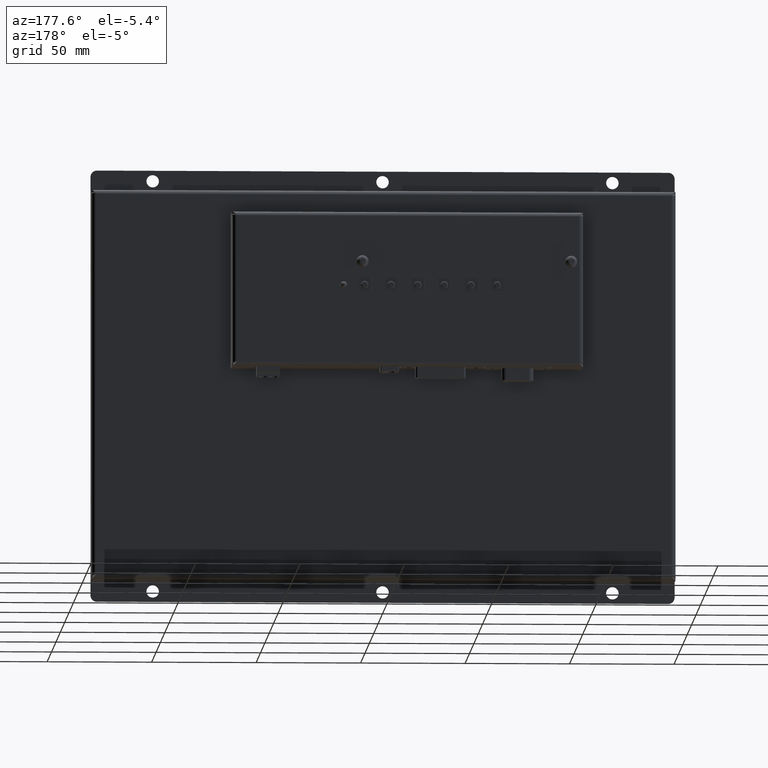
[diagram: clean part render]
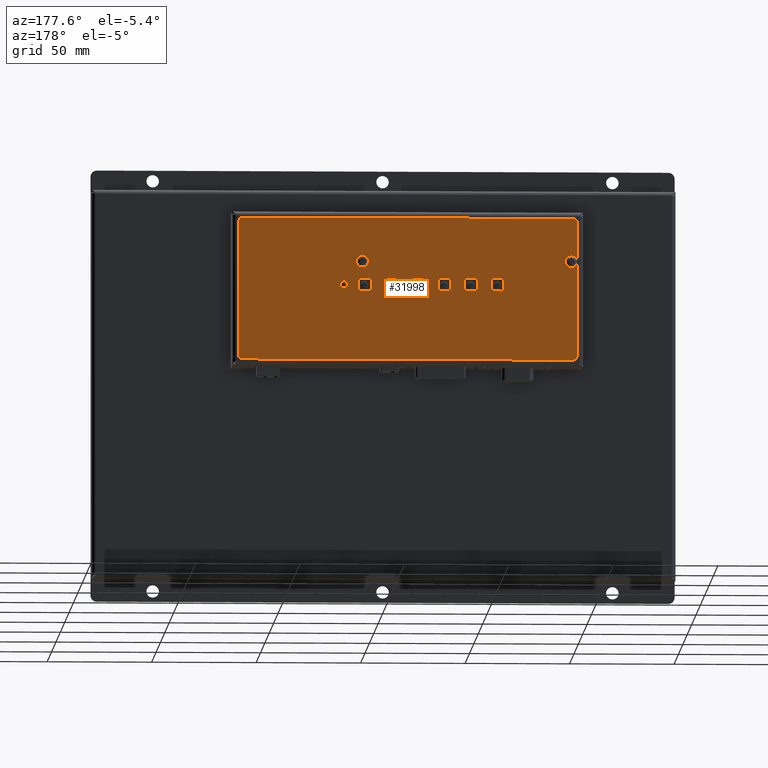
[diagram: same view with one face highlighted and labeled with its STEP entity id]
A machine part, auxiliary view. The second image highlights one B-rep face of the part: STEP entity #31998.
In plain terms, the highlighted planar face has unit normal (0, 1, 0).
Its self-contained STEP definition (entity closure, byte-faithful):
#873=FACE_BOUND('',#5921,.T.);
#874=FACE_BOUND('',#5922,.T.);
#875=FACE_BOUND('',#5923,.T.);
#876=FACE_BOUND('',#5924,.T.);
#877=FACE_BOUND('',#5925,.T.);
#878=FACE_BOUND('',#5926,.T.);
#879=FACE_BOUND('',#5927,.T.);
#880=FACE_BOUND('',#5928,.T.);
#881=FACE_BOUND('',#5929,.T.);
#1876=PLANE('',#35064);
#3968=FACE_OUTER_BOUND('',#5920,.T.);
#5920=EDGE_LOOP('',(#28134,#28135,#28136,#28137,#28138,#28139,#28140,#28141));
#5921=EDGE_LOOP('',(#28142,#28143));
#5922=EDGE_LOOP('',(#28144,#28145));
#5923=EDGE_LOOP('',(#28146,#28147,#28148,#28149));
#5924=EDGE_LOOP('',(#28150,#28151,#28152,#28153));
#5925=EDGE_LOOP('',(#28154,#28155,#28156,#28157));
#5926=EDGE_LOOP('',(#28158,#28159,#28160,#28161));
#5927=EDGE_LOOP('',(#28162,#28163,#28164,#28165));
#5928=EDGE_LOOP('',(#28166,#28167,#28168,#28169));
#5929=EDGE_LOOP('',(#28170));
#8723=LINE('',#54603,#11642);
#8753=LINE('',#54674,#11672);
#8757=LINE('',#54687,#11676);
#8760=LINE('',#54692,#11679);
#8762=LINE('',#54696,#11681);
#8764=LINE('',#54699,#11683);
#8765=LINE('',#54703,#11684);
#8768=LINE('',#54708,#11687);
#8770=LINE('',#54712,#11689);
#8772=LINE('',#54715,#11691);
#8773=LINE('',#54719,#11692);
#8776=LINE('',#54724,#11695);
#8778=LINE('',#54728,#11697);
#8780=LINE('',#54731,#11699);
#8781=LINE('',#54735,#11700);
#8784=LINE('',#54740,#11703);
#8786=LINE('',#54744,#11705);
#8788=LINE('',#54747,#11707);
#8789=LINE('',#54751,#11708);
#8792=LINE('',#54756,#11711);
#8794=LINE('',#54760,#11713);
#8796=LINE('',#54763,#11715);
#8797=LINE('',#54767,#11716);
#8800=LINE('',#54772,#11719);
#8802=LINE('',#54776,#11721);
#8804=LINE('',#54779,#11723);
#8806=LINE('',#54785,#11725);
#8807=LINE('',#54787,#11726);
#11642=VECTOR('',#42737,10.);
#11672=VECTOR('',#42783,10.);
#11676=VECTOR('',#42797,10.);
#11679=VECTOR('',#42802,10.);
#11681=VECTOR('',#42806,10.);
#11683=VECTOR('',#42810,10.);
#11684=VECTOR('',#42813,10.);
#11687=VECTOR('',#42818,10.);
#11689=VECTOR('',#42822,10.);
#11691=VECTOR('',#42826,10.);
#11692=VECTOR('',#42829,10.);
#11695=VECTOR('',#42834,10.);
#11697=VECTOR('',#42838,10.);
#11699=VECTOR('',#42842,10.);
#11700=VECTOR('',#42845,10.);
#11703=VECTOR('',#42850,10.);
#11705=VECTOR('',#42854,10.);
#11707=VECTOR('',#42858,10.);
#11708=VECTOR('',#42861,10.);
#11711=VECTOR('',#42866,10.);
#11713=VECTOR('',#42870,10.);
#11715=VECTOR('',#42874,10.);
#11716=VECTOR('',#42877,10.);
#11719=VECTOR('',#42882,10.);
#11721=VECTOR('',#42886,10.);
#11723=VECTOR('',#42890,10.);
#11725=VECTOR('',#42898,10.);
#11726=VECTOR('',#42901,10.);
#12978=CIRCLE('',#35013,1.65);
#12979=CIRCLE('',#35014,1.65);
#12981=CIRCLE('',#35017,1.65);
#12982=CIRCLE('',#35018,1.65);
#12984=CIRCLE('',#35021,2.);
#12990=CIRCLE('',#35030,2.);
#12991=CIRCLE('',#35033,2.);
#12992=CIRCLE('',#35035,2.);
#12993=CIRCLE('',#35061,1.75);
#15682=VERTEX_POINT('',#54574);
#15683=VERTEX_POINT('',#54575);
#15685=VERTEX_POINT('',#54582);
#15686=VERTEX_POINT('',#54583);
#15688=VERTEX_POINT('',#54590);
#15689=VERTEX_POINT('',#54591);
#15693=VERTEX_POINT('',#54601);
#15724=VERTEX_POINT('',#54667);
#15725=VERTEX_POINT('',#54668);
#15726=VERTEX_POINT('',#54673);
#15727=VERTEX_POINT('',#54677);
#15728=VERTEX_POINT('',#54681);
#15729=VERTEX_POINT('',#54685);
#15730=VERTEX_POINT('',#54686);
#15731=VERTEX_POINT('',#54691);
#15732=VERTEX_POINT('',#54695);
#15733=VERTEX_POINT('',#54701);
#15734=VERTEX_POINT('',#54702);
#15735=VERTEX_POINT('',#54707);
#15736=VERTEX_POINT('',#54711);
#15737=VERTEX_POINT('',#54717);
#15738=VERTEX_POINT('',#54718);
#15739=VERTEX_POINT('',#54723);
#15740=VERTEX_POINT('',#54727);
#15741=VERTEX_POINT('',#54733);
#15742=VERTEX_POINT('',#54734);
#15743=VERTEX_POINT('',#54739);
#15744=VERTEX_POINT('',#54743);
#15745=VERTEX_POINT('',#54749);
#15746=VERTEX_POINT('',#54750);
#15747=VERTEX_POINT('',#54755);
#15748=VERTEX_POINT('',#54759);
#15749=VERTEX_POINT('',#54765);
#15750=VERTEX_POINT('',#54766);
#15751=VERTEX_POINT('',#54771);
#15752=VERTEX_POINT('',#54775);
#15753=VERTEX_POINT('',#54781);
#19840=EDGE_CURVE('',#15682,#15683,#12978,.T.);
#19841=EDGE_CURVE('',#15683,#15682,#12979,.T.);
#19844=EDGE_CURVE('',#15685,#15686,#12981,.T.);
#19845=EDGE_CURVE('',#15686,#15685,#12982,.T.);
#19848=EDGE_CURVE('',#15688,#15689,#12984,.T.);
#19854=EDGE_CURVE('',#15693,#15688,#8723,.T.);
#19886=EDGE_CURVE('',#15724,#15725,#12990,.T.);
#19889=EDGE_CURVE('',#15725,#15726,#8753,.T.);
#19891=EDGE_CURVE('',#15726,#15727,#12991,.T.);
#19893=EDGE_CURVE('',#15728,#15693,#12992,.T.);
#19895=EDGE_CURVE('',#15729,#15730,#8757,.T.);
#19898=EDGE_CURVE('',#15730,#15731,#8760,.T.);
#19900=EDGE_CURVE('',#15731,#15732,#8762,.T.);
#19902=EDGE_CURVE('',#15732,#15729,#8764,.T.);
#19903=EDGE_CURVE('',#15733,#15734,#8765,.T.);
#19906=EDGE_CURVE('',#15734,#15735,#8768,.T.);
#19908=EDGE_CURVE('',#15735,#15736,#8770,.T.);
#19910=EDGE_CURVE('',#15736,#15733,#8772,.T.);
#19911=EDGE_CURVE('',#15737,#15738,#8773,.T.);
#19914=EDGE_CURVE('',#15738,#15739,#8776,.T.);
#19916=EDGE_CURVE('',#15739,#15740,#8778,.T.);
#19918=EDGE_CURVE('',#15740,#15737,#8780,.T.);
#19919=EDGE_CURVE('',#15741,#15742,#8781,.T.);
#19922=EDGE_CURVE('',#15742,#15743,#8784,.T.);
#19924=EDGE_CURVE('',#15743,#15744,#8786,.T.);
#19926=EDGE_CURVE('',#15744,#15741,#8788,.T.);
#19927=EDGE_CURVE('',#15745,#15746,#8789,.T.);
#19930=EDGE_CURVE('',#15746,#15747,#8792,.T.);
#19932=EDGE_CURVE('',#15747,#15748,#8794,.T.);
#19934=EDGE_CURVE('',#15748,#15745,#8796,.T.);
#19935=EDGE_CURVE('',#15749,#15750,#8797,.T.);
#19938=EDGE_CURVE('',#15750,#15751,#8800,.T.);
#19940=EDGE_CURVE('',#15751,#15752,#8802,.T.);
#19942=EDGE_CURVE('',#15752,#15749,#8804,.T.);
#19944=EDGE_CURVE('',#15753,#15753,#12993,.T.);
#19945=EDGE_CURVE('',#15689,#15724,#8806,.T.);
#19946=EDGE_CURVE('',#15727,#15728,#8807,.T.);
#28134=ORIENTED_EDGE('',*,*,#19848,.F.);
#28135=ORIENTED_EDGE('',*,*,#19854,.F.);
#28136=ORIENTED_EDGE('',*,*,#19893,.F.);
#28137=ORIENTED_EDGE('',*,*,#19946,.F.);
#28138=ORIENTED_EDGE('',*,*,#19891,.F.);
#28139=ORIENTED_EDGE('',*,*,#19889,.F.);
#28140=ORIENTED_EDGE('',*,*,#19886,.F.);
#28141=ORIENTED_EDGE('',*,*,#19945,.F.);
#28142=ORIENTED_EDGE('',*,*,#19840,.T.);
#28143=ORIENTED_EDGE('',*,*,#19841,.T.);
#28144=ORIENTED_EDGE('',*,*,#19844,.T.);
#28145=ORIENTED_EDGE('',*,*,#19845,.T.);
#28146=ORIENTED_EDGE('',*,*,#19895,.T.);
#28147=ORIENTED_EDGE('',*,*,#19898,.T.);
#28148=ORIENTED_EDGE('',*,*,#19900,.T.);
#28149=ORIENTED_EDGE('',*,*,#19902,.T.);
#28150=ORIENTED_EDGE('',*,*,#19903,.T.);
#28151=ORIENTED_EDGE('',*,*,#19906,.T.);
#28152=ORIENTED_EDGE('',*,*,#19908,.T.);
#28153=ORIENTED_EDGE('',*,*,#19910,.T.);
#28154=ORIENTED_EDGE('',*,*,#19911,.T.);
#28155=ORIENTED_EDGE('',*,*,#19914,.T.);
#28156=ORIENTED_EDGE('',*,*,#19916,.T.);
#28157=ORIENTED_EDGE('',*,*,#19918,.T.);
#28158=ORIENTED_EDGE('',*,*,#19919,.T.);
#28159=ORIENTED_EDGE('',*,*,#19922,.T.);
#28160=ORIENTED_EDGE('',*,*,#19924,.T.);
#28161=ORIENTED_EDGE('',*,*,#19926,.T.);
#28162=ORIENTED_EDGE('',*,*,#19927,.T.);
#28163=ORIENTED_EDGE('',*,*,#19930,.T.);
#28164=ORIENTED_EDGE('',*,*,#19932,.T.);
#28165=ORIENTED_EDGE('',*,*,#19934,.T.);
#28166=ORIENTED_EDGE('',*,*,#19935,.T.);
#28167=ORIENTED_EDGE('',*,*,#19938,.T.);
#28168=ORIENTED_EDGE('',*,*,#19940,.T.);
#28169=ORIENTED_EDGE('',*,*,#19942,.T.);
#28170=ORIENTED_EDGE('',*,*,#19944,.T.);
#31998=ADVANCED_FACE('',(#3968,#873,#874,#875,#876,#877,#878,#879,#880,
#881),#1876,.T.);
#35013=AXIS2_PLACEMENT_3D('',#54576,#42709,#42710);
#35014=AXIS2_PLACEMENT_3D('',#54577,#42711,#42712);
#35017=AXIS2_PLACEMENT_3D('',#54584,#42718,#42719);
#35018=AXIS2_PLACEMENT_3D('',#54585,#42720,#42721);
#35021=AXIS2_PLACEMENT_3D('',#54592,#42727,#42728);
#35030=AXIS2_PLACEMENT_3D('',#54669,#42777,#42778);
#35033=AXIS2_PLACEMENT_3D('',#54678,#42787,#42788);
#35035=AXIS2_PLACEMENT_3D('',#54682,#42792,#42793);
#35061=AXIS2_PLACEMENT_3D('',#54783,#42894,#42895);
#35064=AXIS2_PLACEMENT_3D('',#54788,#42902,#42903);
#42709=DIRECTION('center_axis',(0.,0.,-1.));
#42710=DIRECTION('ref_axis',(1.,0.,0.));
#42711=DIRECTION('center_axis',(0.,0.,-1.));
#42712=DIRECTION('ref_axis',(1.,0.,0.));
#42718=DIRECTION('center_axis',(0.,0.,-1.));
#42719=DIRECTION('ref_axis',(1.,0.,0.));
#42720=DIRECTION('center_axis',(0.,0.,-1.));
#42721=DIRECTION('ref_axis',(1.,0.,0.));
#42727=DIRECTION('center_axis',(0.,0.,-1.));
#42728=DIRECTION('ref_axis',(0.707106781186546,0.707106781186549,0.));
#42737=DIRECTION('',(1.,3.28954970259307E-16,0.));
#42777=DIRECTION('center_axis',(0.,0.,-1.));
#42778=DIRECTION('ref_axis',(0.707106781186546,-0.707106781186549,0.));
#42783=DIRECTION('',(-1.,-4.66019541200685E-16,0.));
#42787=DIRECTION('center_axis',(0.,0.,-1.));
#42788=DIRECTION('ref_axis',(-0.707106781186546,-0.707106781186549,0.));
#42792=DIRECTION('center_axis',(0.,0.,-1.));
#42793=DIRECTION('ref_axis',(-0.707106781186546,0.707106781186549,0.));
#42797=DIRECTION('',(1.,3.70074341541718E-16,0.));
#42802=DIRECTION('',(0.,-1.,0.));
#42806=DIRECTION('',(-1.,0.,0.));
#42810=DIRECTION('',(0.,1.,0.));
#42813=DIRECTION('',(1.,1.85037170770859E-16,0.));
#42818=DIRECTION('',(0.,-1.,0.));
#42822=DIRECTION('',(-1.,0.,0.));
#42826=DIRECTION('',(0.,1.,0.));
#42829=DIRECTION('',(0.,1.,0.));
#42834=DIRECTION('',(1.,0.,0.));
#42838=DIRECTION('',(0.,-1.,0.));
#42842=DIRECTION('',(-1.,0.,0.));
#42845=DIRECTION('',(0.,1.,0.));
#42850=DIRECTION('',(1.,3.70074341541718E-16,0.));
#42854=DIRECTION('',(0.,-1.,0.));
#42858=DIRECTION('',(-1.,0.,0.));
#42861=DIRECTION('',(-1.21430643318376E-16,1.,0.));
#42866=DIRECTION('',(1.,1.85037170770859E-16,0.));
#42870=DIRECTION('',(0.,-1.,0.));
#42874=DIRECTION('',(-1.,0.,0.));
#42877=DIRECTION('',(1.,1.85037170770859E-16,0.));
#42882=DIRECTION('',(0.,-1.,0.));
#42886=DIRECTION('',(-1.,0.,0.));
#42890=DIRECTION('',(0.,1.,0.));
#42894=DIRECTION('center_axis',(0.,0.,-1.));
#42895=DIRECTION('ref_axis',(-1.,0.,0.));
#42898=DIRECTION('',(0.,-1.,0.));
#42901=DIRECTION('',(0.,1.,0.));
#42902=DIRECTION('center_axis',(0.,0.,1.));
#42903=DIRECTION('ref_axis',(1.,0.,0.));
#54574=CARTESIAN_POINT('',(-21.5500000000004,13.0999999999998,1.));
#54575=CARTESIAN_POINT('',(-24.8500000000004,13.0999999999998,1.00000000000001));
#54576=CARTESIAN_POINT('Origin',(-23.2000000000004,13.0999999999998,1.00000000000001));
#54577=CARTESIAN_POINT('Origin',(-23.2000000000004,13.0999999999998,1.00000000000001));
#54582=CARTESIAN_POINT('',(78.3499999999998,13.1999999999998,1.));
#54583=CARTESIAN_POINT('',(75.0499999999998,13.1999999999998,1.00000000000001));
#54584=CARTESIAN_POINT('Origin',(76.6999999999998,13.1999999999998,1.00000000000001));
#54585=CARTESIAN_POINT('Origin',(76.6999999999998,13.1999999999998,1.00000000000001));
#54590=CARTESIAN_POINT('',(77.4999999999998,33.9999999999997,1.));
#54591=CARTESIAN_POINT('',(79.4999999999998,31.9999999999997,1.));
#54592=CARTESIAN_POINT('Origin',(77.4999999999998,31.9999999999997,1.));
#54601=CARTESIAN_POINT('',(-80.4999999999995,33.9999999999996,1.));
#54603=CARTESIAN_POINT('',(-82.4999999999994,33.9999999999996,1.));
#54667=CARTESIAN_POINT('',(79.4999999999998,-32.0000000000002,1.));
#54668=CARTESIAN_POINT('',(77.4999999999998,-34.0000000000002,1.));
#54669=CARTESIAN_POINT('Origin',(77.4999999999998,-32.0000000000002,1.));
#54673=CARTESIAN_POINT('',(-80.4999999999994,-34.0000000000003,1.));
#54674=CARTESIAN_POINT('',(79.4999999999998,-34.0000000000002,1.));
#54677=CARTESIAN_POINT('',(-82.4999999999994,-32.0000000000003,1.));
#54678=CARTESIAN_POINT('Origin',(-80.4999999999995,-32.0000000000003,1.));
#54681=CARTESIAN_POINT('',(-82.4999999999994,31.9999999999996,1.));
#54682=CARTESIAN_POINT('Origin',(-80.4999999999995,31.9999999999996,1.));
#54685=CARTESIAN_POINT('',(38.4000000000002,4.99999999999934,1.));
#54686=CARTESIAN_POINT('',(44.4000000000002,4.99999999999934,1.));
#54687=CARTESIAN_POINT('',(18.4500000000002,4.99999999999933,1.));
#54691=CARTESIAN_POINT('',(44.4000000000002,-1.00000000000067,1.));
#54692=CARTESIAN_POINT('',(44.4000000000002,2.49999999999953,1.));
#54695=CARTESIAN_POINT('',(38.4000000000002,-1.00000000000067,1.));
#54696=CARTESIAN_POINT('',(21.4500000000002,-1.00000000000067,1.));
#54699=CARTESIAN_POINT('',(38.4000000000002,-0.500000000000476,1.));
#54701=CARTESIAN_POINT('',(13.0000000000001,4.99999999999933,1.));
#54702=CARTESIAN_POINT('',(19.0000000000002,4.99999999999933,1.));
#54703=CARTESIAN_POINT('',(5.75000000000017,4.99999999999933,1.));
#54707=CARTESIAN_POINT('',(19.0000000000002,-1.00000000000055,1.));
#54708=CARTESIAN_POINT('',(19.0000000000002,2.49999999999952,1.));
#54711=CARTESIAN_POINT('',(13.0000000000001,-1.00000000000055,1.));
#54712=CARTESIAN_POINT('',(8.75000000000017,-1.00000000000055,1.));
#54715=CARTESIAN_POINT('',(13.0000000000001,-0.500000000000417,1.));
#54717=CARTESIAN_POINT('',(-12.3999999999998,-1.00000000000055,1.));
#54718=CARTESIAN_POINT('',(-12.3999999999998,4.99999999999944,1.));
#54719=CARTESIAN_POINT('',(-12.3999999999998,-0.500000000000418,1.));
#54723=CARTESIAN_POINT('',(-6.39999999999985,4.99999999999944,1.));
#54724=CARTESIAN_POINT('',(-6.94999999999982,4.99999999999944,1.));
#54727=CARTESIAN_POINT('',(-6.39999999999985,-1.00000000000055,1.));
#54728=CARTESIAN_POINT('',(-6.39999999999985,2.49999999999958,1.));
#54731=CARTESIAN_POINT('',(-3.94999999999983,-1.00000000000055,1.));
#54733=CARTESIAN_POINT('',(-25.0999999999999,-1.00000000000069,1.));
#54734=CARTESIAN_POINT('',(-25.0999999999999,4.99999999999943,1.));
#54735=CARTESIAN_POINT('',(-25.0999999999999,-0.500000000000488,1.));
#54739=CARTESIAN_POINT('',(-19.0999999999998,4.99999999999943,1.));
#54740=CARTESIAN_POINT('',(-13.2999999999998,4.99999999999943,1.));
#54743=CARTESIAN_POINT('',(-19.0999999999998,-1.00000000000069,1.));
#54744=CARTESIAN_POINT('',(-19.0999999999998,2.49999999999957,1.));
#54747=CARTESIAN_POINT('',(-10.2999999999998,-1.00000000000069,1.));
#54749=CARTESIAN_POINT('',(0.300000000000153,-1.00000000000056,1.));
#54750=CARTESIAN_POINT('',(0.300000000000153,4.99999999999944,1.));
#54751=CARTESIAN_POINT('',(0.300000000000153,-0.500000000000424,1.));
#54755=CARTESIAN_POINT('',(6.30000000000018,4.99999999999944,1.));
#54756=CARTESIAN_POINT('',(-0.599999999999827,4.99999999999944,1.));
#54759=CARTESIAN_POINT('',(6.30000000000018,-1.00000000000056,1.));
#54760=CARTESIAN_POINT('',(6.30000000000018,2.49999999999958,1.));
#54763=CARTESIAN_POINT('',(2.40000000000019,-1.00000000000056,1.));
#54765=CARTESIAN_POINT('',(25.7000000000002,4.99999999999945,1.));
#54766=CARTESIAN_POINT('',(31.7000000000002,4.99999999999945,1.));
#54767=CARTESIAN_POINT('',(12.1000000000002,4.99999999999945,1.));
#54771=CARTESIAN_POINT('',(31.7000000000002,-1.00000000000055,1.));
#54772=CARTESIAN_POINT('',(31.7000000000002,2.49999999999958,1.));
#54775=CARTESIAN_POINT('',(25.7000000000002,-1.00000000000055,1.));
#54776=CARTESIAN_POINT('',(15.1000000000002,-1.00000000000055,1.));
#54779=CARTESIAN_POINT('',(25.7000000000002,-0.500000000000416,1.));
#54781=CARTESIAN_POINT('',(-30.3499999999998,1.99999999999932,1.));
#54783=CARTESIAN_POINT('Origin',(-32.0999999999998,1.99999999999932,1.));
#54785=CARTESIAN_POINT('',(79.4999999999998,33.9999999999997,1.));
#54787=CARTESIAN_POINT('',(-82.4999999999994,-34.0000000000003,1.));
#54788=CARTESIAN_POINT('Origin',(-1.49999999999981,-2.84306614263338E-13,
1.));